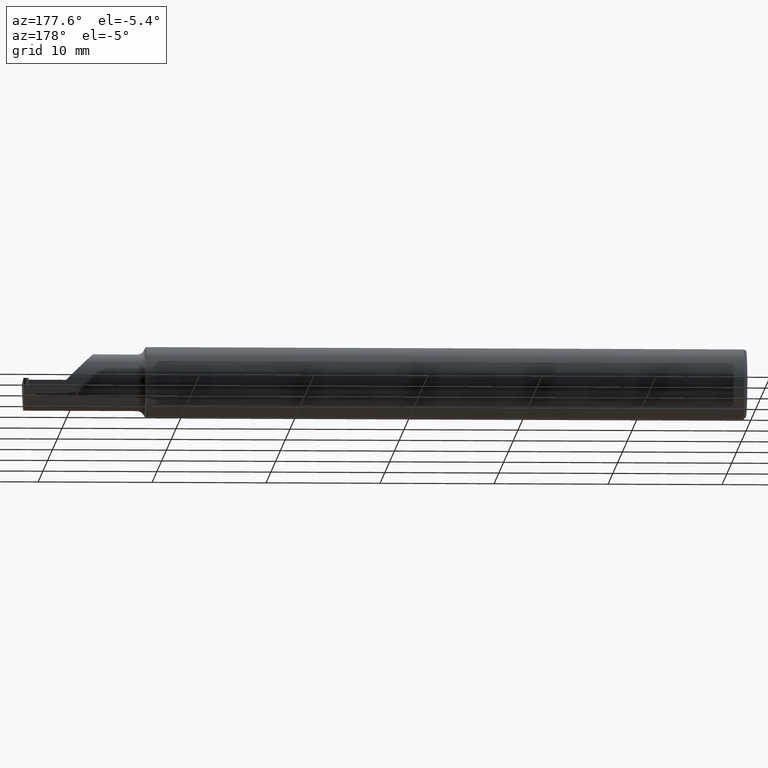
[diagram: clean part render]
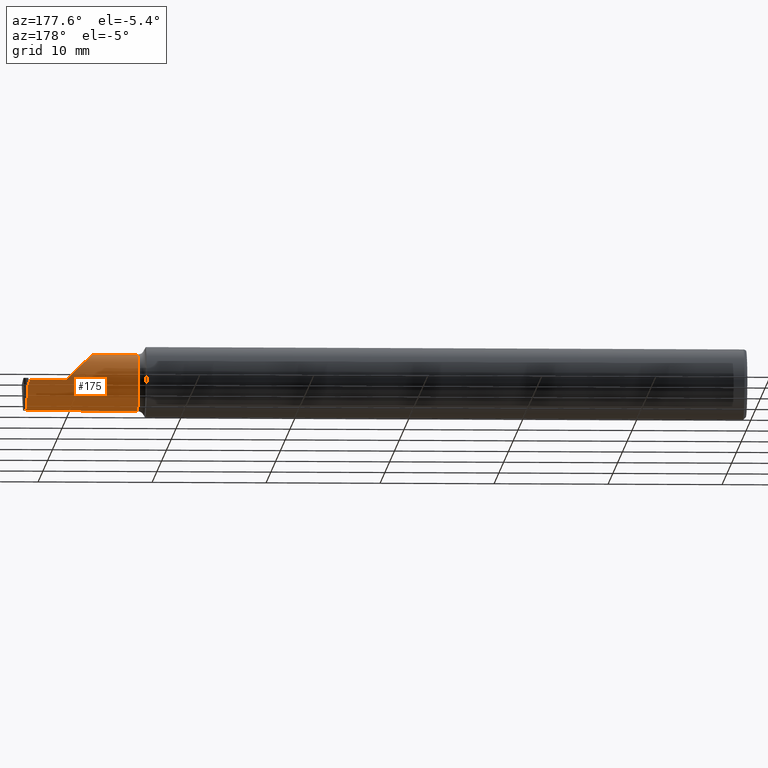
[diagram: same view with one face highlighted and labeled with its STEP entity id]
A machine part, auxiliary view. The second image highlights one B-rep face of the part: STEP entity #175.
In plain terms, the highlighted cylindrical surface (edge-blend (fillet) strip) has radius 2.4892 mm, axis along (-1, 0, -0).
Its self-contained STEP definition (entity closure, byte-faithful):
#3 = CARTESIAN_POINT ( 'NONE',  ( 2.477090476183632539, 0.05376127692546275177, -0.006836134426924101760 ) ) ;
#5 = EDGE_CURVE ( 'NONE', #608, #683, #290, .T. ) ;
#10 = CYLINDRICAL_SURFACE ( 'NONE', #633, 0.09800000000000007316 ) ;
#24 =( BOUNDED_CURVE ( )  B_SPLINE_CURVE ( 3, ( #63, #266, #222, #600 ),
 .UNSPECIFIED., .F., .T. ) 
 B_SPLINE_CURVE_WITH_KNOTS ( ( 4, 4 ),
 ( 6.253187659403602439, 6.746650124384888869 ),
 .UNSPECIFIED. ) 
 CURVE ( )  GEOMETRIC_REPRESENTATION_ITEM ( )  RATIONAL_B_SPLINE_CURVE ( ( 1.000000000000000000, 0.9798106333074692031, 0.9798106333074692031, 1.000000000000000000 ) ) 
 REPRESENTATION_ITEM ( '' )  );
#46 = EDGE_LOOP ( 'NONE', ( #329, #674, #392, #99, #661, #49, #498, #106, #235, #418 ) ) ;
#49 = ORIENTED_EDGE ( 'NONE', *, *, #5, .F. ) ;
#63 = CARTESIAN_POINT ( 'NONE',  ( 2.493431982762754462, -0.09042045454545434569, -0.08630840862739522223 ) ) ;
#67 = CARTESIAN_POINT ( 'NONE',  ( 2.477329199258169634, 0.05399999999999997163, 0.000000000000000000 ) ) ;
#77 =( BOUNDED_CURVE ( )  B_SPLINE_CURVE ( 3, ( #620, #578, #568, #631 ),
 .UNSPECIFIED., .F., .T. ) 
 B_SPLINE_CURVE_WITH_KNOTS ( ( 4, 4 ),
 ( 5.789722842198293584, 7.853981633974482790 ),
 .UNSPECIFIED. ) 
 CURVE ( )  GEOMETRIC_REPRESENTATION_ITEM ( )  RATIONAL_B_SPLINE_CURVE ( ( 1.000000000000000000, 0.6753281001527238203, 0.6753281001527238203, 1.000000000000000000 ) ) 
 REPRESENTATION_ITEM ( '' )  );
#83 = CARTESIAN_POINT ( 'NONE',  ( 2.487115857322145018, -0.04400000000000009459, -0.09800000000000008704 ) ) ;
#85 = EDGE_CURVE ( 'NONE', #405, #520, #640, .T. ) ;
#93 = VECTOR ( 'NONE', #219, 39.37007874015748143 ) ;
#99 = ORIENTED_EDGE ( 'NONE', *, *, #450, .T. ) ;
#106 = ORIENTED_EDGE ( 'NONE', *, *, #85, .F. ) ;
#107 = DIRECTION ( 'NONE',  ( -1.000000000000000000, 1.257036449194457259E-16, -0.000000000000000000 ) ) ;
#134 = CARTESIAN_POINT ( 'NONE',  ( 2.477170050541811719, 0.05384085128364182737, -0.004557422951282729881 ) ) ;
#147 = VERTEX_POINT ( 'NONE', #385 ) ;
#155 = DIRECTION ( 'NONE',  ( 1.000000000000000000, -1.257036449194457259E-16, 0.000000000000000000 ) ) ;
#157 = AXIS2_PLACEMENT_3D ( 'NONE', #550, #334, #434 ) ;
#159 = EDGE_CURVE ( 'NONE', #696, #147, #24, .T. ) ;
#162 = EDGE_CURVE ( 'NONE', #650, #560, #669, .T. ) ;
#166 = LINE ( 'NONE', #287, #93 ) ;
#169 = LINE ( 'NONE', #496, #474 ) ;
#175 = ADVANCED_FACE ( 'NONE', ( #383 ), #10, .T. ) ;
#180 = VERTEX_POINT ( 'NONE', #389 ) ;
#188 = EDGE_CURVE ( 'NONE', #650, #180, #226, .T. ) ;
#191 = LINE ( 'NONE', #407, #408 ) ;
#219 = DIRECTION ( 'NONE',  ( -1.000000000000000000, -0.000000000000000000, -0.000000000000000000 ) ) ;
#222 = CARTESIAN_POINT ( 'NONE',  ( 2.493549648562250809, -0.06028551311893220327, -0.09800000000000001765 ) ) ;
#224 = EDGE_CURVE ( 'NONE', #326, #683, #169, .T. ) ;
#226 = LINE ( 'NONE', #493, #305 ) ;
#235 = ORIENTED_EDGE ( 'NONE', *, *, #679, .F. ) ;
#261 = CARTESIAN_POINT ( 'NONE',  ( 2.075000000000000178, 0.05376127692546273096, -0.006836134426925153870 ) ) ;
#262 = CARTESIAN_POINT ( 'NONE',  ( 2.075000000000000178, -0.04400000000000004602, 0.000000000000000000 ) ) ;
#266 = CARTESIAN_POINT ( 'NONE',  ( 2.493412911089820660, -0.07607783494366283927, -0.09402249966297451800 ) ) ;
#287 = CARTESIAN_POINT ( 'NONE',  ( 2.672413070268786939, -0.04400000000000041378, -0.09800000000000008704 ) ) ;
#290 = B_SPLINE_CURVE_WITH_KNOTS ( 'NONE', 3,
 ( #3, #134, #565, #67 ),
 .UNSPECIFIED., .F., .F.,
 ( 4, 4 ),
 ( 0.000000000000000000, 1.000000000000000000 ),
 .UNSPECIFIED. ) ;
#298 = CARTESIAN_POINT ( 'NONE',  ( 2.100000000000000089, -0.09042045454545434569, -0.08630840862739518060 ) ) ;
#299 = CARTESIAN_POINT ( 'NONE',  ( 2.485685536098598103, 0.04997501107658527258, -0.06098225869090297124 ) ) ;
#305 = VECTOR ( 'NONE', #155, 39.37007874015748143 ) ;
#326 = VERTEX_POINT ( 'NONE', #531 ) ;
#329 = ORIENTED_EDGE ( 'NONE', *, *, #502, .T. ) ;
#333 = EDGE_CURVE ( 'NONE', #520, #608, #626, .T. ) ;
#334 = DIRECTION ( 'NONE',  ( -1.000000000000000000, 1.257036449194457259E-16, -0.000000000000000000 ) ) ;
#352 = VECTOR ( 'NONE', #572, 39.37007874015748143 ) ;
#383 = FACE_OUTER_BOUND ( 'NONE', #46, .T. ) ;
#385 = CARTESIAN_POINT ( 'NONE',  ( 2.493833913251130241, -0.04400000000000041378, -0.09800000000000008704 ) ) ;
#389 = CARTESIAN_POINT ( 'NONE',  ( 2.263691591372603895, -0.09042045454545456773, 0.08630840862739504182 ) ) ;
#390 = CARTESIAN_POINT ( 'NONE',  ( 2.493431982762754462, -0.09042045454545434569, -0.08630840862739522223 ) ) ;
#392 = ORIENTED_EDGE ( 'NONE', *, *, #188, .T. ) ;
#405 = VERTEX_POINT ( 'NONE', #416 ) ;
#407 = CARTESIAN_POINT ( 'NONE',  ( 2.291241705000000017, -0.09042045454545430405, -0.08630840862739522223 ) ) ;
#408 = VECTOR ( 'NONE', #682, 39.37007874015748143 ) ;
#411 = CARTESIAN_POINT ( 'NONE',  ( 2.483759070038810801, 0.05376127692546273790, -0.006836134426924772231 ) ) ;
#416 = CARTESIAN_POINT ( 'NONE',  ( 2.487115857322145018, -0.04400000000000009459, -0.09800000000000008704 ) ) ;
#418 = ORIENTED_EDGE ( 'NONE', *, *, #159, .F. ) ;
#434 = DIRECTION ( 'NONE',  ( 0.000000000000000000, -1.000000000000000000, 0.000000000000000000 ) ) ;
#438 = DIRECTION ( 'NONE',  ( 0.000000000000000000, -1.000000000000000000, 0.000000000000000000 ) ) ;
#440 = CARTESIAN_POINT ( 'NONE',  ( 2.477329199258169634, 0.05399999999999997163, 0.000000000000000000 ) ) ;
#450 = EDGE_CURVE ( 'NONE', #180, #326, #77, .T. ) ;
#474 = VECTOR ( 'NONE', #482, 39.37007874015748143 ) ;
#482 = DIRECTION ( 'NONE',  ( 1.000000000000000000, -1.257036449194457259E-16, 0.000000000000000000 ) ) ;
#483 = CARTESIAN_POINT ( 'NONE',  ( 2.100000000000000089, -0.09042045454545430405, 0.08630840862739518060 ) ) ;
#493 = CARTESIAN_POINT ( 'NONE',  ( 2.291241705000000017, -0.09042045454545430405, 0.08630840862739522223 ) ) ;
#496 = CARTESIAN_POINT ( 'NONE',  ( 2.075000000000000178, 0.05400000000000000633, 5.204748896376245769E-17 ) ) ;
#498 = ORIENTED_EDGE ( 'NONE', *, *, #333, .F. ) ;
#502 = EDGE_CURVE ( 'NONE', #696, #560, #191, .T. ) ;
#520 = VERTEX_POINT ( 'NONE', #673 ) ;
#531 = CARTESIAN_POINT ( 'NONE',  ( 2.350000000000000089, 0.05399999999999997163, 5.204748896376245769E-17 ) ) ;
#543 = CARTESIAN_POINT ( 'NONE',  ( 2.477090476183632539, 0.05376127692546275177, -0.006836134426924101760 ) ) ;
#550 = CARTESIAN_POINT ( 'NONE',  ( 2.100000000000000089, -0.04400000000000004602, 0.000000000000000000 ) ) ;
#560 = VERTEX_POINT ( 'NONE', #298 ) ;
#565 = CARTESIAN_POINT ( 'NONE',  ( 2.477249624899990899, 0.05392042564182090297, -0.002278711475641364507 ) ) ;
#568 = CARTESIAN_POINT ( 'NONE',  ( 2.266956372099407258, 0.05400000000000000633, 0.08304362790059185984 ) ) ;
#572 = DIRECTION ( 'NONE',  ( -1.000000000000000000, 1.257036449194457259E-16, -0.000000000000000000 ) ) ;
#578 = CARTESIAN_POINT ( 'NONE',  ( 2.224355642859857873, -0.01728409361947884360, 0.1256443571401406334 ) ) ;
#600 = CARTESIAN_POINT ( 'NONE',  ( 2.493833913251130241, -0.04400000000000041378, -0.09800000000000008704 ) ) ;
#608 = VERTEX_POINT ( 'NONE', #543 ) ;
#620 = CARTESIAN_POINT ( 'NONE',  ( 2.263691591372603895, -0.09042045454545456773, 0.08630840862739504182 ) ) ;
#626 = LINE ( 'NONE', #261, #352 ) ;
#631 = CARTESIAN_POINT ( 'NONE',  ( 2.350000000000000089, 0.05399999999999997163, 5.204748896376245769E-17 ) ) ;
#633 = AXIS2_PLACEMENT_3D ( 'NONE', #262, #107, #438 ) ;
#640 =( BOUNDED_CURVE ( )  B_SPLINE_CURVE ( 3, ( #83, #678, #299, #411 ),
 .UNSPECIFIED., .F., .T. ) 
 B_SPLINE_CURVE_WITH_KNOTS ( ( 4, 4 ),
 ( 3.176499238629683308, 4.677482395344801702 ),
 .UNSPECIFIED. ) 
 CURVE ( )  GEOMETRIC_REPRESENTATION_ITEM ( )  RATIONAL_B_SPLINE_CURVE ( ( 1.000000000000000000, 0.8209024677461147501, 0.8209024677461147501, 1.000000000000000000 ) ) 
 REPRESENTATION_ITEM ( '' )  );
#650 = VERTEX_POINT ( 'NONE', #483 ) ;
#661 = ORIENTED_EDGE ( 'NONE', *, *, #224, .T. ) ;
#669 = CIRCLE ( 'NONE', #157, 0.09800000000000005929 ) ;
#673 = CARTESIAN_POINT ( 'NONE',  ( 2.483759070038810801, 0.05376127692546273790, -0.006836134426924772231 ) ) ;
#674 = ORIENTED_EDGE ( 'NONE', *, *, #162, .F. ) ;
#678 = CARTESIAN_POINT ( 'NONE',  ( 2.487048583644937416, 0.01027834358092123007, -0.09800000000000007316 ) ) ;
#679 = EDGE_CURVE ( 'NONE', #147, #405, #166, .T. ) ;
#682 = DIRECTION ( 'NONE',  ( -1.000000000000000000, 1.257036449194457259E-16, -0.000000000000000000 ) ) ;
#683 = VERTEX_POINT ( 'NONE', #440 ) ;
#696 = VERTEX_POINT ( 'NONE', #390 ) ;